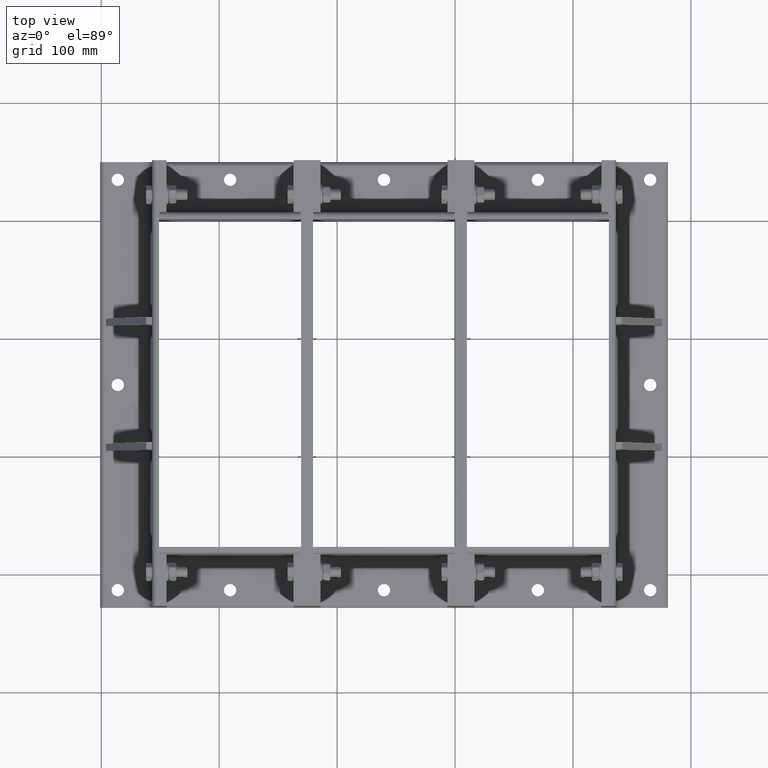
[diagram: clean part render]
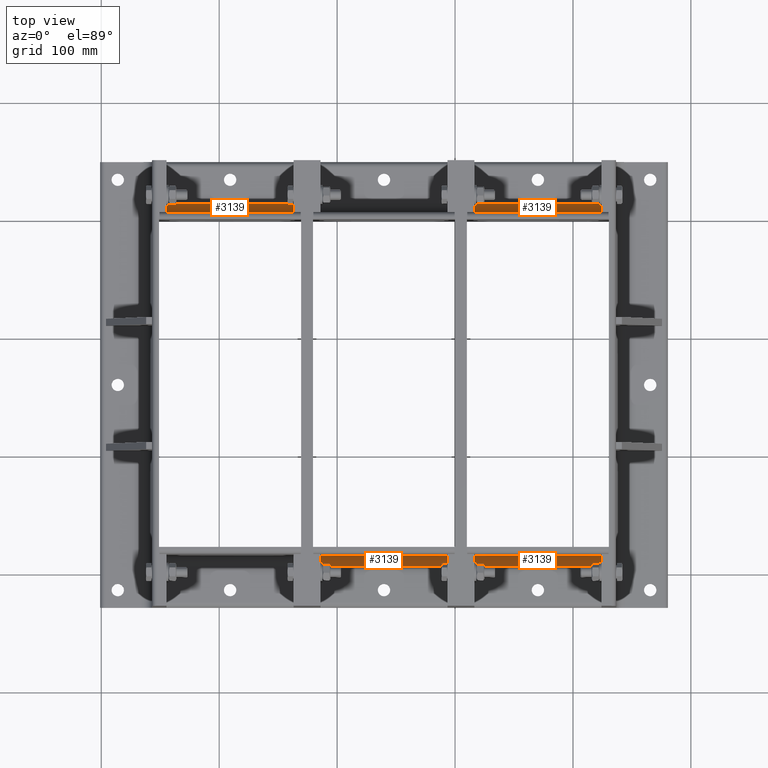
[diagram: same view with one multi-face feature highlighted, each face labeled with its STEP entity id]
A machine part, top view. The highlighted faces form ONE feature: a constant-radius fillet chain: 4 tangent blend faces with common blend radius 9 mm. The faces share edges in the B-rep.
Their STEP definitions:
[1] entity #3139 (Cylinder):
#3025=CARTESIAN_POINT('',(2.232257E-015,119.80000000000001,9.000000000000005));
#3026=VERTEX_POINT('',#3025);
#3033=CARTESIAN_POINT('',(9.0,119.80000000000001,-2.753479E-015));
#3034=VERTEX_POINT('',#3033);
#3035=CARTESIAN_POINT('',(9.000000000000002,119.80000000000001,9.000000000000004));
#3036=DIRECTION('',(0.0,1.0,0.0));
#3037=DIRECTION('',(-0.707106781186547,0.0,-0.707106781186548));
#3038=AXIS2_PLACEMENT_3D('',#3035,#3036,#3037);
#3039=CIRCLE('',#3038,9.0);
#3040=EDGE_CURVE('',#3034,#3026,#3039,.T.);
#3108=CARTESIAN_POINT('',(9.000000000000002,0.0,9.000000000000004));
#3109=DIRECTION('',(0.0,1.0,0.0));
#3110=DIRECTION('',(-0.707106781186547,0.0,-0.707106781186548));
#3111=AXIS2_PLACEMENT_3D('',#3108,#3109,#3110);
#3112=CYLINDRICAL_SURFACE('',#3111,9.0);
#3113=CARTESIAN_POINT('',(2.232257E-015,0.0,9.000000000000005));
#3114=VERTEX_POINT('',#3113);
#3115=CARTESIAN_POINT('',(9.0,0.0,-2.753479E-015));
#3116=VERTEX_POINT('',#3115);
#3117=CARTESIAN_POINT('',(9.000000000000002,0.0,9.000000000000004));
#3118=DIRECTION('',(0.0,-1.0,0.0));
#3119=DIRECTION('',(-0.707106781186547,0.0,-0.707106781186548));
#3120=AXIS2_PLACEMENT_3D('',#3117,#3118,#3119);
#3121=CIRCLE('',#3120,9.0);
#3122=EDGE_CURVE('',#3114,#3116,#3121,.T.);
#3123=ORIENTED_EDGE('',*,*,#3122,.T.);
#3124=CARTESIAN_POINT('',(9.0,0.0,-2.220446E-015));
#3125=DIRECTION('',(0.0,1.0,0.0));
#3126=VECTOR('',#3125,119.80000000000001);
#3127=LINE('',#3124,#3126);
#3128=EDGE_CURVE('',#3116,#3034,#3127,.T.);
#3129=ORIENTED_EDGE('',*,*,#3128,.T.);
#3130=ORIENTED_EDGE('',*,*,#3040,.T.);
#3131=CARTESIAN_POINT('',(2.220446E-015,119.80000000000001,9.000000000000005));
#3132=DIRECTION('',(0.0,-1.0,0.0));
#3133=VECTOR('',#3132,119.80000000000001);
#3134=LINE('',#3131,#3133);
#3135=EDGE_CURVE('',#3026,#3114,#3134,.T.);
#3136=ORIENTED_EDGE('',*,*,#3135,.T.);
#3137=EDGE_LOOP('',(#3123,#3129,#3130,#3136));
#3138=FACE_OUTER_BOUND('',#3137,.T.);
#3139=ADVANCED_FACE('',(#3138),#3112,.F.);
[2] entity #3139 (Cylinder):
#3025=CARTESIAN_POINT('',(2.232257E-015,119.80000000000001,9.000000000000005));
#3026=VERTEX_POINT('',#3025);
#3033=CARTESIAN_POINT('',(9.0,119.80000000000001,-2.753479E-015));
#3034=VERTEX_POINT('',#3033);
#3035=CARTESIAN_POINT('',(9.000000000000002,119.80000000000001,9.000000000000004));
#3036=DIRECTION('',(0.0,1.0,0.0));
#3037=DIRECTION('',(-0.707106781186547,0.0,-0.707106781186548));
#3038=AXIS2_PLACEMENT_3D('',#3035,#3036,#3037);
#3039=CIRCLE('',#3038,9.0);
#3040=EDGE_CURVE('',#3034,#3026,#3039,.T.);
#3108=CARTESIAN_POINT('',(9.000000000000002,0.0,9.000000000000004));
#3109=DIRECTION('',(0.0,1.0,0.0));
#3110=DIRECTION('',(-0.707106781186547,0.0,-0.707106781186548));
#3111=AXIS2_PLACEMENT_3D('',#3108,#3109,#3110);
#3112=CYLINDRICAL_SURFACE('',#3111,9.0);
#3113=CARTESIAN_POINT('',(2.232257E-015,0.0,9.000000000000005));
#3114=VERTEX_POINT('',#3113);
#3115=CARTESIAN_POINT('',(9.0,0.0,-2.753479E-015));
#3116=VERTEX_POINT('',#3115);
#3117=CARTESIAN_POINT('',(9.000000000000002,0.0,9.000000000000004));
#3118=DIRECTION('',(0.0,-1.0,0.0));
#3119=DIRECTION('',(-0.707106781186547,0.0,-0.707106781186548));
#3120=AXIS2_PLACEMENT_3D('',#3117,#3118,#3119);
#3121=CIRCLE('',#3120,9.0);
#3122=EDGE_CURVE('',#3114,#3116,#3121,.T.);
#3123=ORIENTED_EDGE('',*,*,#3122,.T.);
#3124=CARTESIAN_POINT('',(9.0,0.0,-2.220446E-015));
#3125=DIRECTION('',(0.0,1.0,0.0));
#3126=VECTOR('',#3125,119.80000000000001);
#3127=LINE('',#3124,#3126);
#3128=EDGE_CURVE('',#3116,#3034,#3127,.T.);
#3129=ORIENTED_EDGE('',*,*,#3128,.T.);
#3130=ORIENTED_EDGE('',*,*,#3040,.T.);
#3131=CARTESIAN_POINT('',(2.220446E-015,119.80000000000001,9.000000000000005));
#3132=DIRECTION('',(0.0,-1.0,0.0));
#3133=VECTOR('',#3132,119.80000000000001);
#3134=LINE('',#3131,#3133);
#3135=EDGE_CURVE('',#3026,#3114,#3134,.T.);
#3136=ORIENTED_EDGE('',*,*,#3135,.T.);
#3137=EDGE_LOOP('',(#3123,#3129,#3130,#3136));
#3138=FACE_OUTER_BOUND('',#3137,.T.);
#3139=ADVANCED_FACE('',(#3138),#3112,.F.);
[3] entity #3139 (Cylinder):
#3025=CARTESIAN_POINT('',(2.232257E-015,119.80000000000001,9.000000000000005));
#3026=VERTEX_POINT('',#3025);
#3033=CARTESIAN_POINT('',(9.0,119.80000000000001,-2.753479E-015));
#3034=VERTEX_POINT('',#3033);
#3035=CARTESIAN_POINT('',(9.000000000000002,119.80000000000001,9.000000000000004));
#3036=DIRECTION('',(0.0,1.0,0.0));
#3037=DIRECTION('',(-0.707106781186547,0.0,-0.707106781186548));
#3038=AXIS2_PLACEMENT_3D('',#3035,#3036,#3037);
#3039=CIRCLE('',#3038,9.0);
#3040=EDGE_CURVE('',#3034,#3026,#3039,.T.);
#3108=CARTESIAN_POINT('',(9.000000000000002,0.0,9.000000000000004));
#3109=DIRECTION('',(0.0,1.0,0.0));
#3110=DIRECTION('',(-0.707106781186547,0.0,-0.707106781186548));
#3111=AXIS2_PLACEMENT_3D('',#3108,#3109,#3110);
#3112=CYLINDRICAL_SURFACE('',#3111,9.0);
#3113=CARTESIAN_POINT('',(2.232257E-015,0.0,9.000000000000005));
#3114=VERTEX_POINT('',#3113);
#3115=CARTESIAN_POINT('',(9.0,0.0,-2.753479E-015));
#3116=VERTEX_POINT('',#3115);
#3117=CARTESIAN_POINT('',(9.000000000000002,0.0,9.000000000000004));
#3118=DIRECTION('',(0.0,-1.0,0.0));
#3119=DIRECTION('',(-0.707106781186547,0.0,-0.707106781186548));
#3120=AXIS2_PLACEMENT_3D('',#3117,#3118,#3119);
#3121=CIRCLE('',#3120,9.0);
#3122=EDGE_CURVE('',#3114,#3116,#3121,.T.);
#3123=ORIENTED_EDGE('',*,*,#3122,.T.);
#3124=CARTESIAN_POINT('',(9.0,0.0,-2.220446E-015));
#3125=DIRECTION('',(0.0,1.0,0.0));
#3126=VECTOR('',#3125,119.80000000000001);
#3127=LINE('',#3124,#3126);
#3128=EDGE_CURVE('',#3116,#3034,#3127,.T.);
#3129=ORIENTED_EDGE('',*,*,#3128,.T.);
#3130=ORIENTED_EDGE('',*,*,#3040,.T.);
#3131=CARTESIAN_POINT('',(2.220446E-015,119.80000000000001,9.000000000000005));
#3132=DIRECTION('',(0.0,-1.0,0.0));
#3133=VECTOR('',#3132,119.80000000000001);
#3134=LINE('',#3131,#3133);
#3135=EDGE_CURVE('',#3026,#3114,#3134,.T.);
#3136=ORIENTED_EDGE('',*,*,#3135,.T.);
#3137=EDGE_LOOP('',(#3123,#3129,#3130,#3136));
#3138=FACE_OUTER_BOUND('',#3137,.T.);
#3139=ADVANCED_FACE('',(#3138),#3112,.F.);
[4] entity #3139 (Cylinder):
#3025=CARTESIAN_POINT('',(2.232257E-015,119.80000000000001,9.000000000000005));
#3026=VERTEX_POINT('',#3025);
#3033=CARTESIAN_POINT('',(9.0,119.80000000000001,-2.753479E-015));
#3034=VERTEX_POINT('',#3033);
#3035=CARTESIAN_POINT('',(9.000000000000002,119.80000000000001,9.000000000000004));
#3036=DIRECTION('',(0.0,1.0,0.0));
#3037=DIRECTION('',(-0.707106781186547,0.0,-0.707106781186548));
#3038=AXIS2_PLACEMENT_3D('',#3035,#3036,#3037);
#3039=CIRCLE('',#3038,9.0);
#3040=EDGE_CURVE('',#3034,#3026,#3039,.T.);
#3108=CARTESIAN_POINT('',(9.000000000000002,0.0,9.000000000000004));
#3109=DIRECTION('',(0.0,1.0,0.0));
#3110=DIRECTION('',(-0.707106781186547,0.0,-0.707106781186548));
#3111=AXIS2_PLACEMENT_3D('',#3108,#3109,#3110);
#3112=CYLINDRICAL_SURFACE('',#3111,9.0);
#3113=CARTESIAN_POINT('',(2.232257E-015,0.0,9.000000000000005));
#3114=VERTEX_POINT('',#3113);
#3115=CARTESIAN_POINT('',(9.0,0.0,-2.753479E-015));
#3116=VERTEX_POINT('',#3115);
#3117=CARTESIAN_POINT('',(9.000000000000002,0.0,9.000000000000004));
#3118=DIRECTION('',(0.0,-1.0,0.0));
#3119=DIRECTION('',(-0.707106781186547,0.0,-0.707106781186548));
#3120=AXIS2_PLACEMENT_3D('',#3117,#3118,#3119);
#3121=CIRCLE('',#3120,9.0);
#3122=EDGE_CURVE('',#3114,#3116,#3121,.T.);
#3123=ORIENTED_EDGE('',*,*,#3122,.T.);
#3124=CARTESIAN_POINT('',(9.0,0.0,-2.220446E-015));
#3125=DIRECTION('',(0.0,1.0,0.0));
#3126=VECTOR('',#3125,119.80000000000001);
#3127=LINE('',#3124,#3126);
#3128=EDGE_CURVE('',#3116,#3034,#3127,.T.);
#3129=ORIENTED_EDGE('',*,*,#3128,.T.);
#3130=ORIENTED_EDGE('',*,*,#3040,.T.);
#3131=CARTESIAN_POINT('',(2.220446E-015,119.80000000000001,9.000000000000005));
#3132=DIRECTION('',(0.0,-1.0,0.0));
#3133=VECTOR('',#3132,119.80000000000001);
#3134=LINE('',#3131,#3133);
#3135=EDGE_CURVE('',#3026,#3114,#3134,.T.);
#3136=ORIENTED_EDGE('',*,*,#3135,.T.);
#3137=EDGE_LOOP('',(#3123,#3129,#3130,#3136));
#3138=FACE_OUTER_BOUND('',#3137,.T.);
#3139=ADVANCED_FACE('',(#3138),#3112,.F.);